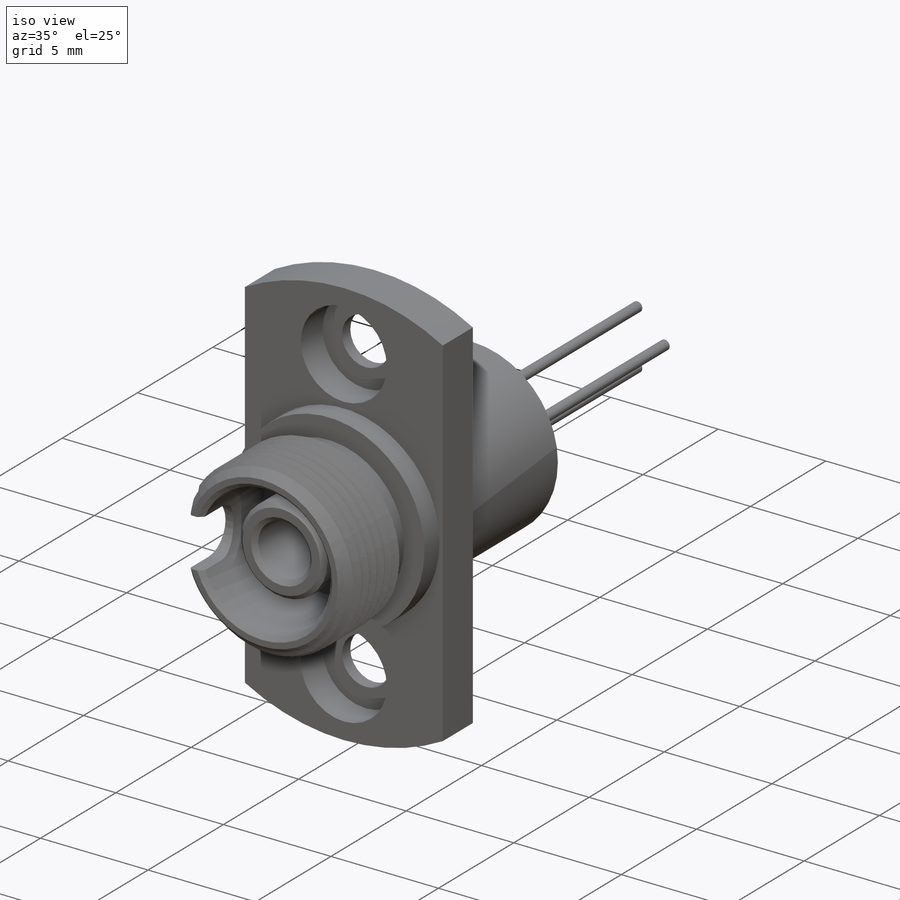
[diagram: iso view]
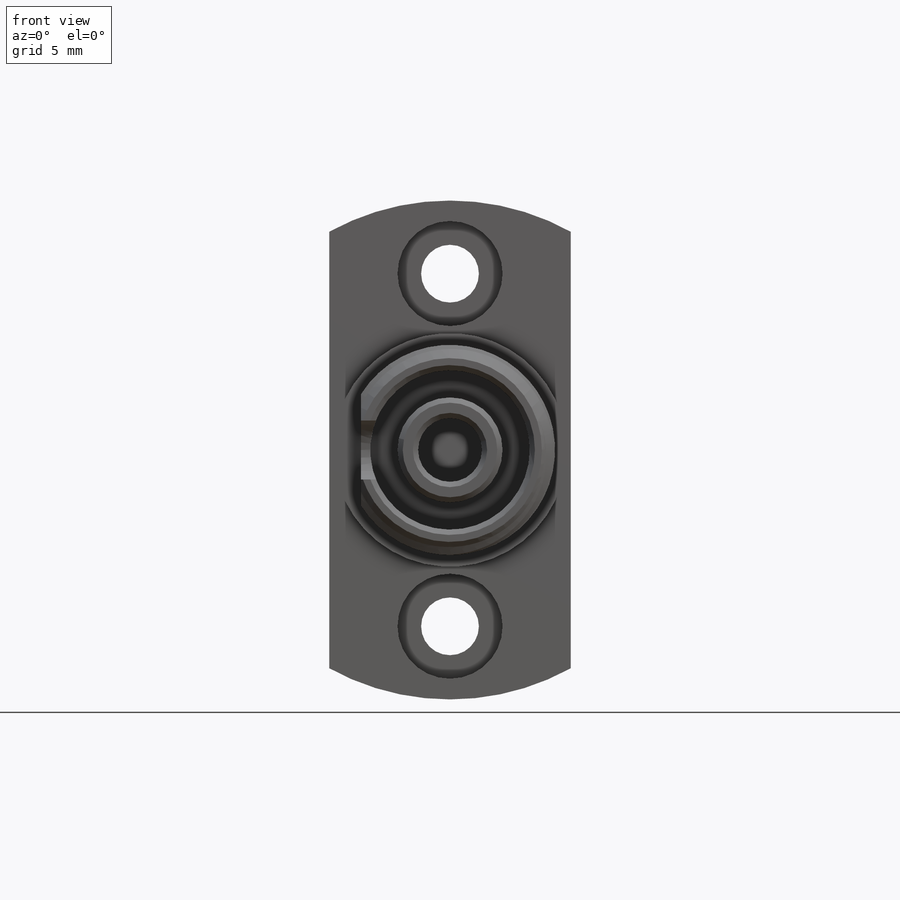
[diagram: front view]
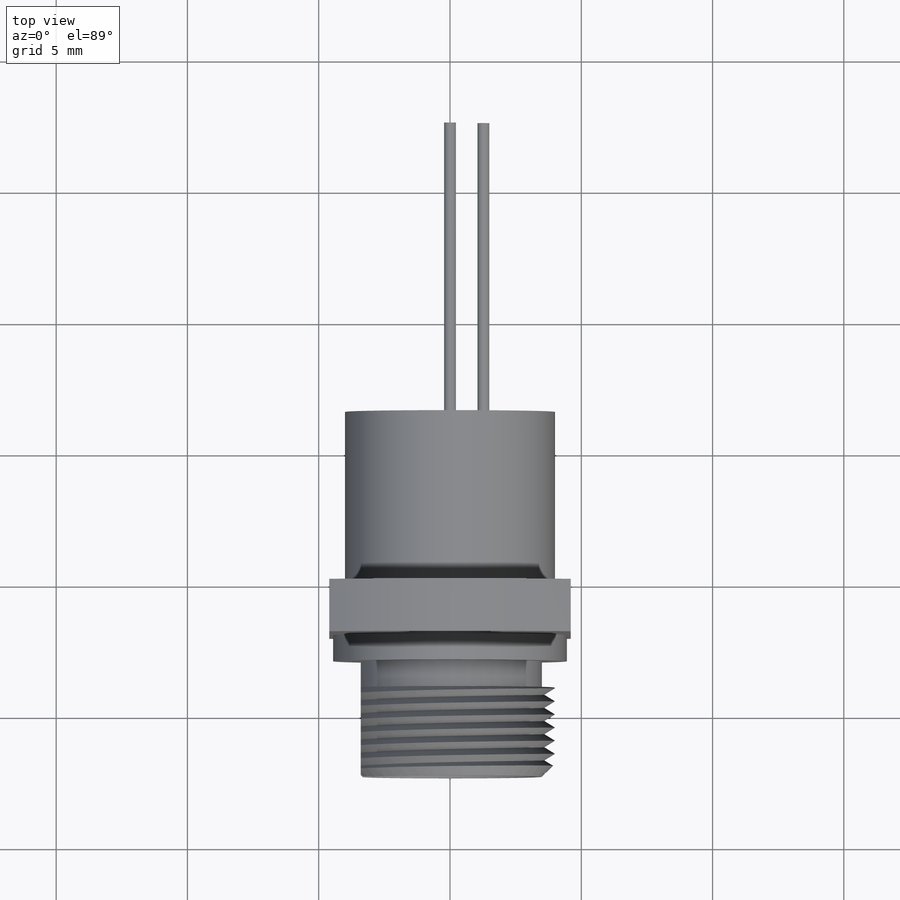
[diagram: top view]
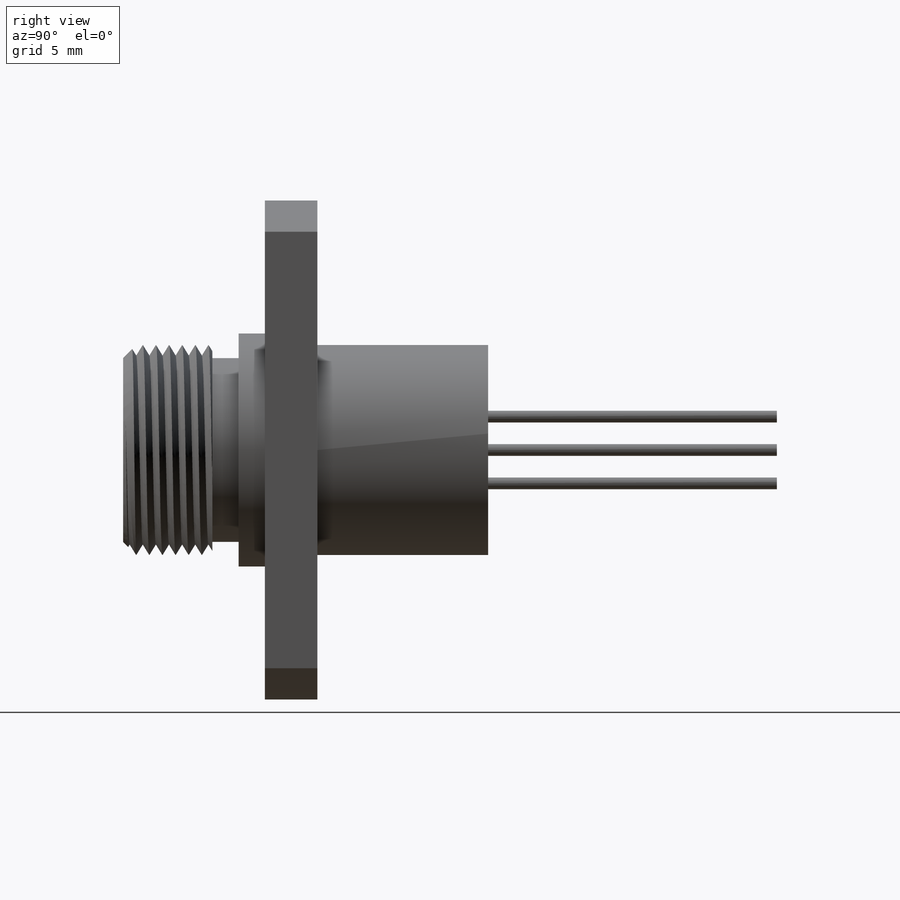
[diagram: right view]
SOLIDWORKS PART (.sldprt)
format: sldprt  version: not decoded by parser v0  size: 551,424 bytes
history: native  units: mm
features: sketch x15, cut_extrude x7, extrude x5, chamfer x2, material x1, plane x1, helix x1, sweep x1, cut_revolve x1 (+11 scaffold rows collapsed)
feature tree (45):
  scaffold x11  (default folders/planes/origin — collapsed)
  material  "Material <not specified>"
  plane  "Plane1"  Offset=9.5mm
  sketch  "Sketch1"  dims[D1=19.0mm D2=9.2mm]
  extrude  "Extrude1"  Depth=2mm
  sketch  "Sketch3"  dims[D1=2.2mm D2=13.43mm]
  cut_extrude  "Cut-Extrude1"  [1 undecoded]
  sketch  "Sketch4"  dims[D1=4.0mm]
  cut_extrude  "Cut-Extrude2"  Depth=1.45mm
  sketch  "Sketch5"  dims[D1=8.0mm]
  extrude  "Extrude2"  Depth=6.5mm
  sketch  "Sketch6"  dims[D1=2.54mm D2=0.45mm]
  extrude  "Extrude3"  Depth=11mm
  sketch  "Sketch7"  dims[D1=8.9mm]
  extrude  "Extrude4"  Depth=1mm
  sketch  "Sketch8"  dims[D1=8.0mm]
  extrude  "Extrude5"  Depth=13.9mm
  sketch  "Sketch9"  dims[D1=1.0mm D2=0.49mm D3=0.4mm]
  sketch  "Sketch10"
  helix  "Helix/Spiral1"  Pitch=6mm
  chamfer  "Chamfer1"  Distance=0.5mm Angle=45deg
  sweep  "Cut-Sweep1"
  sketch  "Sketch11"  dims[D1=3.5mm D2=1.0mm D3=1.0mm]
  cut_revolve  "Cut-Revolve1"  Angle=360deg
  sketch  "Sketch12"  dims[D1=2.43mm]
  cut_extrude  "Cut-Extrude3"  Depth=7.5mm
  sketch  "Sketch13"  dims[D1=6.07mm]
  cut_extrude  "Cut-Extrude4"  Depth=1.25mm
  sketch  "Sketch14"  dims[D1=4.0mm]
  cut_extrude  "Cut-Extrude5"  [1 undecoded]
  chamfer  "Chamfer2"  Distance=0.2mm Angle=45deg
  sketch  "Sketch15"  dims[D1=6.9mm]
  cut_extrude  "Cut-Extrude6"  [1 undecoded]
  sketch  "Sketch16"  dims[D1=2.25mm D2=2.0mm]
  cut_extrude  "Cut-Extrude7"  [1 undecoded]
decode coverage: 26 of 32 modeling features carry decoded parameters
note: 4 parameter values undecoded
summary: no parameter record found for 4 features
note: suppression state not decoded; provenance and decode notes live in map.json
